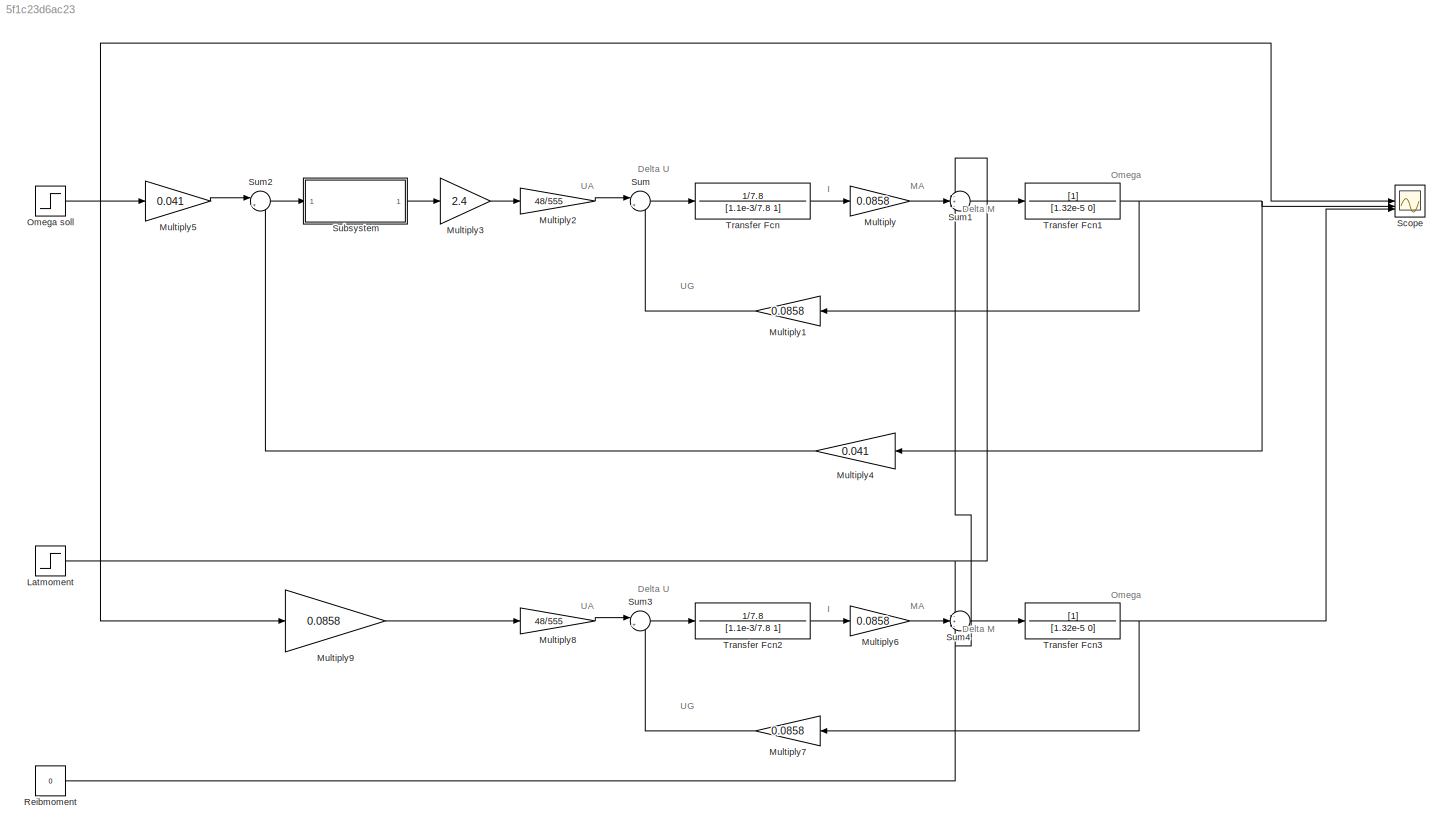
MODEL slx_5f1c23d6ac23
KIND model
CONFIG AbsTol = auto
CONFIG EnableMultiTasking = off
CONFIG FixedStep = auto
CONFIG MaxStep = auto
CONFIG MinStep = auto
CONFIG RelTol = 1e-3
CONFIG SampleTimeConstraint = Unconstrained
CONFIG SolverName = VariableStepAuto
CONFIG StartTime = 0.0
CONFIG StopTime = 3
BLOCK [Step] Latmoment
  After = 0.052
  SampleTime = 0
BLOCK [Gain] Multiply
  Gain = 0.0858
BLOCK [Gain] Multiply1
  Gain = 0.0858
  NameLocation = top
BLOCK [Gain] Multiply2
  Commented = through
  Gain = 48/555
BLOCK [Gain] Multiply3
  Gain = 2.4
BLOCK [Gain] Multiply4
  Gain = 0.041
BLOCK [Gain] Multiply5
  Gain = 0.041
BLOCK [Gain] Multiply6
  Gain = 0.0858
BLOCK [Gain] Multiply7
  Gain = 0.0858
  NameLocation = top
BLOCK [Gain] Multiply8
  Commented = through
  Gain = 48/555
BLOCK [Gain] Multiply9
  Gain = 0.0858
BLOCK [Step] Omega soll
  After = 0
  SampleTime = 0
BLOCK [Constant] Reibmoment
  Value = 0
BLOCK [Scope] Scope
  Floating = off
  NumInputPorts = 3
  ScopeSpecificationString = Simulink.scopes.TimeScopeBlockCfg('CurrentConfiguration', extmgr.ConfigurationSet(extmgr.Configuration('Core','General UI',true),extmgr.Configuration('Core','Source UI',true),extmgr.Configuration('Sources','WiredSimulink',true),extmgr.Configuration('Visuals','Time Domain',true,'SerializedDisplays',{struct('MinYLimReal','-69.52133','MaxYLimReal','57.5131','YLabelReal','','MinYLimMag','0.00000','Max...<+1492ch>
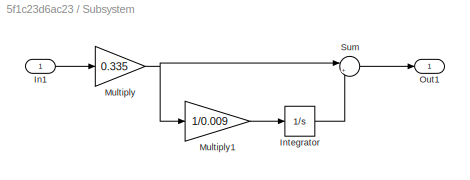
BLOCK [SubSystem] Subsystem
BLOCK [Inport] Subsystem/In1
BLOCK [Integrator] Subsystem/Integrator
BLOCK [Gain] Subsystem/Multiply
  Gain = 0.335
BLOCK [Gain] Subsystem/Multiply1
  Gain = 1/0.009
BLOCK [Outport] Subsystem/Out1
BLOCK [Sum] Subsystem/Sum
  Inputs = |++
BLOCK [Sum] Sum
  Inputs = |+-
BLOCK [Sum] Sum1
  Inputs = -+-
BLOCK [Sum] Sum2
  Inputs = |+-
BLOCK [Sum] Sum3
  Inputs = |+-
BLOCK [Sum] Sum4
  Inputs = -+-
BLOCK [TransferFcn] Transfer Fcn
  Denominator = [1.1e-3/7.8 1]
  Numerator = 1/7.8
BLOCK [TransferFcn] Transfer Fcn1
  Denominator = [1.32e-5 0]
BLOCK [TransferFcn] Transfer Fcn2
  Denominator = [1.1e-3/7.8 1]
  Numerator = 1/7.8
BLOCK [TransferFcn] Transfer Fcn3
  Denominator = [1.32e-5 0]
ANNOTATION (root): Delta M
ANNOTATION (root): Delta U
ANNOTATION (root): I
ANNOTATION (root): MA
ANNOTATION (root): Omega
ANNOTATION (root): UA
ANNOTATION (root): UG
NET Latmoment:1 -> Sum1:1, Sum4:1
LINE Multiply1:1 -> Sum:2
LINE Multiply2:1 -> Sum:1
LINE Multiply3:1 -> Multiply2:1
LINE Multiply4:1 -> Sum2:2
LINE Multiply5:1 -> Sum2:1
LINE Multiply6:1 -> Sum4:2
LINE Multiply7:1 -> Sum3:2
LINE Multiply8:1 -> Sum3:1
LINE Multiply9:1 -> Multiply8:1
LINE Multiply:1 -> Sum1:2
NET Omega soll:1 -> Multiply5:1, Multiply9:1, Scope:1
NET Reibmoment:1 -> Sum1:3, Sum4:3
LINE Subsystem/In1:1 -> Subsystem/Multiply:1
LINE Subsystem/Integrator:1 -> Subsystem/Sum:2
LINE Subsystem/Multiply1:1 -> Subsystem/Integrator:1
NET Subsystem/Multiply:1 -> Subsystem/Multiply1:1, Subsystem/Sum:1
LINE Subsystem/Sum:1 -> Subsystem/Out1:1
LINE Subsystem:1 -> Multiply3:1
LINE Sum1:1 -> Transfer Fcn1:1
LINE Sum2:1 -> Subsystem:1
LINE Sum3:1 -> Transfer Fcn2:1
LINE Sum4:1 -> Transfer Fcn3:1
LINE Sum:1 -> Transfer Fcn:1
NET Transfer Fcn1:1 -> Multiply1:1, Multiply4:1, Scope:2
LINE Transfer Fcn2:1 -> Multiply6:1
NET Transfer Fcn3:1 -> Multiply7:1, Scope:3
LINE Transfer Fcn:1 -> Multiply:1
note: NET lines group one-source signal fan-out (src -> all destinations, sorted); 1:1 wires keep LINE
